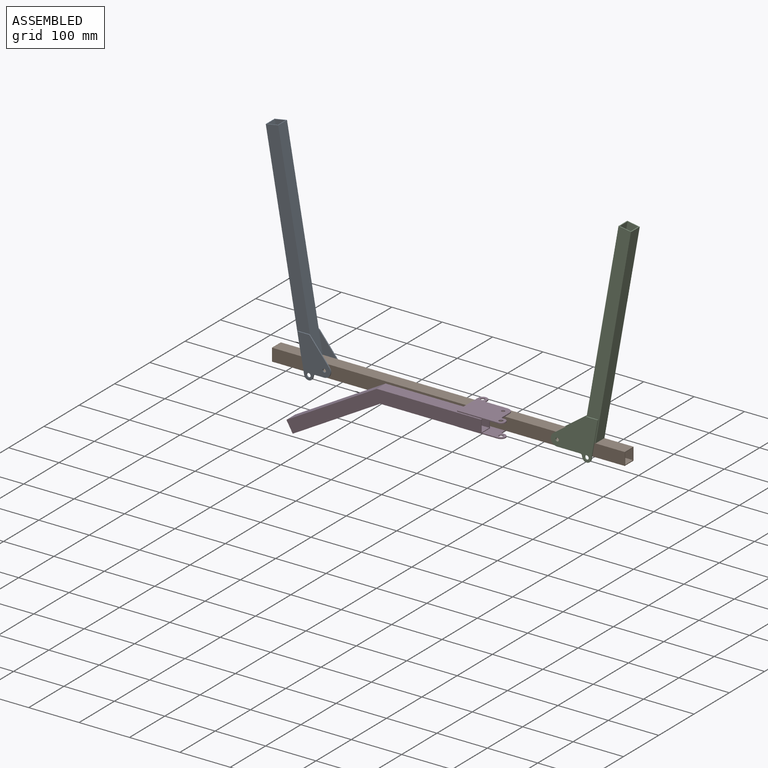
[diagram: assembled view]
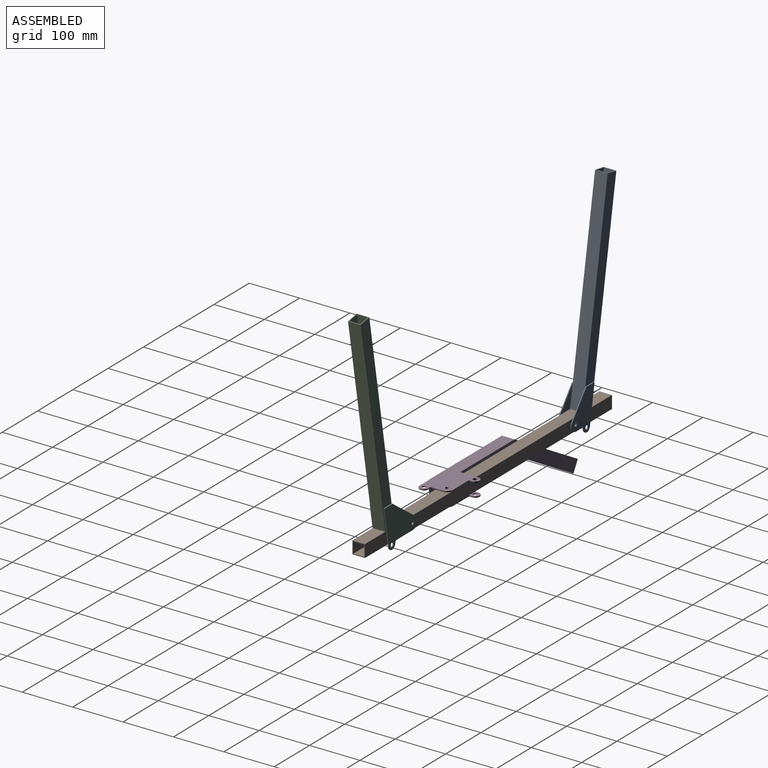
[diagram: assembled view, second angle]
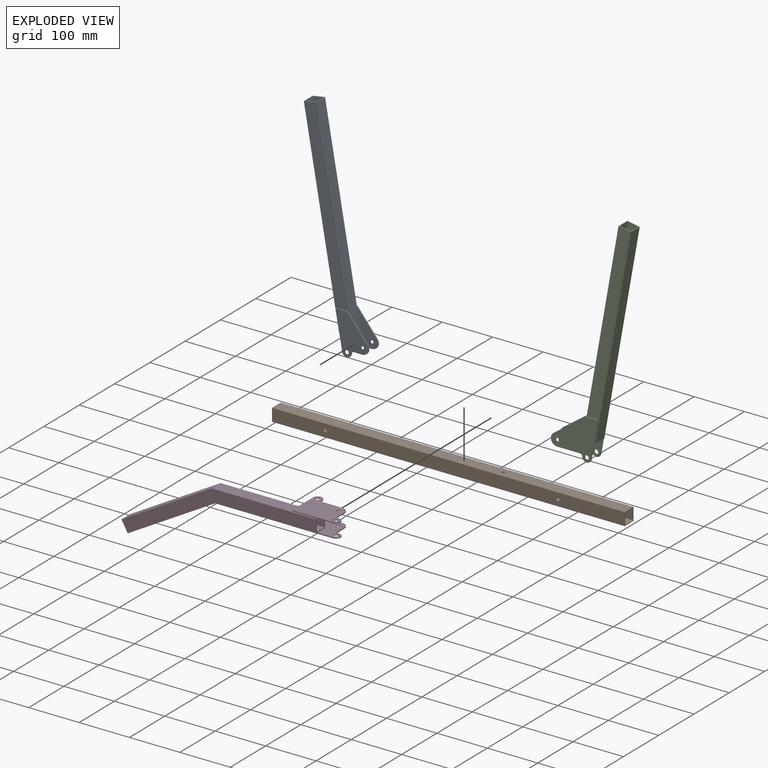
[diagram: exploded view]
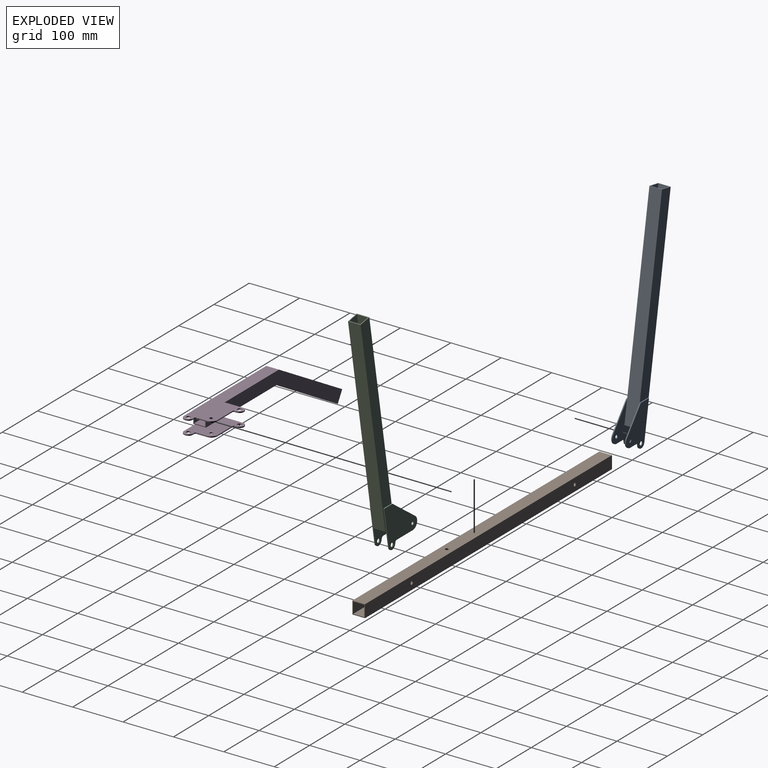
[diagram: exploded view, second angle]
ASSEMBLY  parts=4 mates=3
PART A: 34 faces, bbox 130x29x440.2 mm
  f0: plane 402.17x87.79mm, normal (0,1,0), area 9128.1mm2, adj f2,f4,f5,f9,f22,f23
  f1: plane 402.17x87.79mm, normal (0,-1,0), area 9128.1mm2, adj f2,f4,f5,f9,f10,f18
  f2: plane 25.39x25mm, normal (0,0,-1), area 143.2mm2, adj f0,f1,f3,f4,f6,f7,f8,f9
  f3: plane 401.91x92.53mm, normal (0,-1,0), area 8935.8mm2, adj f2,f5,f6,f7
  f4: plane 397.83x70.15mm, normal (-0.98,0,-0.17), area 10099.2mm2, adj f0,f1,f2,f5
  f5: plane 25x24.62mm, normal (-0.17,0,0.98), area 141mm2, adj f0,f1,f3,f4,f6,f7,f8,f9
  f6: plane 398.09x70.19mm, normal (0.98,0,0.17), area 8893.1mm2, adj f2,f3,f5,f8
  f7: plane 401.91x70.87mm, normal (-0.98,0,-0.17), area 8978.4mm2, adj f2,f3,f5,f8
  f8: plane 401.91x92.53mm, normal (0,1,0), area 8935.8mm2, adj f2,f5,f6,f7
  f9: plane 402.17x70.91mm, normal (0.98,0,0.17), area 10209.4mm2, adj f0,f1,f2,f5,f21,f33
  f10: plane 74.5x13.14mm, normal (-0.98,0,-0.17), area 151.3mm2, adj f1,f11,f18,f20,f21
  f11: cylinder r=9mm len=17.73mm, axis (0,1,0), area 50.3mm2, adj f10,f12,f20,f21
  f12: plane 2.26x2mm, normal (0.98,0,-0.17), area 4.6mm2, adj f11,f13,f20,f21
  f13: cylinder r=4mm len=3.94mm, axis (0,1,0), area 11.2mm2, adj f12,f14,f20,f21
  f14: plane 17.91x2mm, normal (0,0,-1), area 35.8mm2, adj f13,f15,f20,f21
  f15: cylinder r=12.5mm len=20.38mm, axis (0,1,0), area 56.3mm2, adj f14,f16,f20,f21
  f16: plane 48.55x39.45mm, normal (0.78,0,0.63), area 125.1mm2, adj f15,f18,f20,f21
  f17: cylinder r=4mm len=8mm, axis (0,1,0), area 50.3mm2, adj f20,f21
  f18: plane 23.36x2mm, normal (0,0,1), area 46.7mm2, adj f1,f10,f16,f20
  f19: cylinder r=3.25mm len=6.5mm, axis (0,1,0), area 40.8mm2, adj f20,f21
  f20: plane 81.94x65.61mm, normal (0,-1,0), area 3091.6mm2, adj f10,f11,f12,f13,f14,f15,f16,f17
  f21: plane 81.94x57.86mm, normal (0,1,0), area 2065.5mm2, adj f2,f9,f10,f11,f12,f13,f14,f15
  f22: plane 74.5x13.14mm, normal (-0.98,0,-0.17), area 151.3mm2, adj f0,f23,f30,f32,f33
  f23: plane 23.36x2mm, normal (0,0,1), area 46.7mm2, adj f0,f22,f24,f32
  f24: plane 48.55x39.45mm, normal (0.78,0,0.63), area 125.1mm2, adj f23,f25,f32,f33
  f25: cylinder r=12.5mm len=20.38mm, axis (0,-1,0), area 56.3mm2, adj f24,f26,f32,f33
  f26: plane 17.91x2mm, normal (0,0,-1), area 35.8mm2, adj f25,f27,f32,f33
  f27: cylinder r=4mm len=3.94mm, axis (0,-1,0), area 11.2mm2, adj f26,f28,f32,f33
  f28: plane 2.26x2mm, normal (0.98,0,-0.17), area 4.6mm2, adj f27,f30,f32,f33
  f29: cylinder r=4mm len=8mm, axis (0,-1,0), area 50.3mm2, adj f32,f33
  f30: cylinder r=9mm len=17.73mm, axis (0,-1,0), area 50.3mm2, adj f22,f28,f32,f33
  f31: cylinder r=3.25mm len=6.5mm, axis (0,-1,0), area 40.8mm2, adj f32,f33
  f32: plane 81.94x65.61mm, normal (0,1,0), area 3091.6mm2, adj f22,f23,f24,f25,f26,f27,f28,f29
  f33: plane 81.94x57.86mm, normal (0,-1,0), area 2065.5mm2, adj f2,f9,f22,f24,f25,f26,f27,f28
PART B: 16 faces, bbox 700x25x25 mm
  f0: plane 700x25mm, normal (0,0,1), area 17466.8mm2, adj f1,f7,f8,f9,f14
  f1: plane 700x25mm, normal (0,-1,0), area 17433.6mm2, adj f0,f2,f8,f9,f11,f13
  f2: plane 700x25mm, normal (0,0,-1), area 17466.8mm2, adj f1,f7,f8,f9,f15
  f3: plane 700x22mm, normal (0,-1,0), area 15333.6mm2, adj f4,f6,f8,f9,f10,f12
  f4: plane 700x22mm, normal (0,0,1), area 15366.8mm2, adj f3,f5,f8,f9,f15
  f5: plane 700x22mm, normal (0,1,0), area 15333.6mm2, adj f4,f6,f8,f9,f11,f13
  f6: plane 700x22mm, normal (0,0,-1), area 15366.8mm2, adj f3,f5,f8,f9,f14
  f7: plane 700x25mm, normal (0,1,0), area 17433.6mm2, adj f0,f2,f8,f9,f10,f12
  f8: plane 25x25mm, normal (1,0,0), area 141mm2, adj f0,f1,f2,f3,f4,f5,f6,f7
  f9: plane 25x25mm, normal (-1,0,0), area 141mm2, adj f0,f1,f2,f3,f4,f5,f6,f7
  f10: cylinder r=3.25mm len=6.5mm, axis (0,-1,0), area 30.6mm2, adj f3,f7
  f11: cylinder r=3.25mm len=6.5mm, axis (0,-1,0), area 30.6mm2, adj f1,f5
  f12: cylinder r=3.25mm len=6.5mm, axis (0,-1,0), area 30.6mm2, adj f3,f7
  f13: cylinder r=3.25mm len=6.5mm, axis (0,-1,0), area 30.6mm2, adj f1,f5
  f14: cylinder r=3.25mm len=6.5mm, axis (0,0,1), area 30.6mm2, adj f0,f6
  f15: cylinder r=3.25mm len=6.5mm, axis (0,0,1), area 30.6mm2, adj f2,f4
PART C: 34 faces, bbox 157.5x29x440.2 mm
  f0: plane 402.17x87.79mm, normal (0,1,0), area 9128.1mm2, adj f2,f3,f8,f9,f23,f31
  f1: plane 402.17x87.79mm, normal (0,-1,0), area 9128.1mm2, adj f2,f3,f8,f9,f10,f11
  f2: plane 25.39x25mm, normal (0,0,-1), area 143.2mm2, adj f0,f1,f3,f4,f5,f6,f7,f8
  f3: plane 402.17x70.91mm, normal (-0.98,0,0.17), area 10209.4mm2, adj f0,f1,f2,f9,f21,f22
  f4: plane 401.91x92.53mm, normal (0,-1,0), area 8935.8mm2, adj f2,f5,f7,f9
  f5: plane 401.91x70.87mm, normal (0.98,0,-0.17), area 8978.4mm2, adj f2,f4,f6,f9
  f6: plane 401.91x92.53mm, normal (0,1,0), area 8935.8mm2, adj f2,f5,f7,f9
  f7: plane 398.09x70.19mm, normal (-0.98,0,0.17), area 8893.1mm2, adj f2,f4,f6,f9
  f8: plane 397.83x70.15mm, normal (0.98,0,-0.17), area 10099.2mm2, adj f0,f1,f2,f9
  f9: plane 25x24.62mm, normal (0.17,0,0.98), area 141mm2, adj f0,f1,f3,f4,f5,f6,f7,f8
  f10: plane 74.5x13.14mm, normal (0.98,0,-0.17), area 151.3mm2, adj f1,f11,f18,f20,f21
  f11: plane 23.36x2mm, normal (0,0,1), area 46.7mm2, adj f1,f10,f12,f20
  f12: plane 64.46x46.28mm, normal (-0.58,0,0.81), area 158.7mm2, adj f11,f13,f20,f21
  f13: cylinder r=12.5mm len=22.65mm, axis (0,1,0), area 63mm2, adj f12,f14,f20,f21
  f14: plane 45.32x2mm, normal (0,0,-1), area 90.6mm2, adj f13,f15,f20,f21
  f15: cylinder r=4mm len=3.94mm, axis (0,1,0), area 11.2mm2, adj f14,f16,f20,f21
  f16: plane 2.26x2mm, normal (-0.98,0,-0.17), area 4.6mm2, adj f15,f18,f20,f21
  f17: cylinder r=4mm len=8mm, axis (0,1,0), area 50.3mm2, adj f20,f21
  f18: cylinder r=9mm len=17.73mm, axis (0,1,0), area 50.3mm2, adj f10,f16,f20,f21
  f19: cylinder r=3.25mm len=6.5mm, axis (0,1,0), area 40.8mm2, adj f20,f21
  f20: plane 93.02x81.94mm, normal (0,-1,0), area 4333.7mm2, adj f10,f11,f12,f13,f14,f15,f16,f17
  f21: plane 85.28x81.94mm, normal (0,1,0), area 3307.6mm2, adj f2,f3,f10,f12,f13,f14,f15,f16
  f22: plane 85.28x81.94mm, normal (0,-1,0), area 3307.6mm2, adj f2,f3,f23,f24,f25,f26,f27,f28
  f23: plane 74.5x13.14mm, normal (0.98,0,-0.17), area 151.3mm2, adj f0,f22,f24,f31,f33
  f24: cylinder r=9mm len=17.73mm, axis (0,-1,0), area 50.3mm2, adj f22,f23,f25,f33
  f25: plane 2.26x2mm, normal (-0.98,0,-0.17), area 4.6mm2, adj f22,f24,f26,f33
  f26: cylinder r=4mm len=3.94mm, axis (0,-1,0), area 11.2mm2, adj f22,f25,f27,f33
  f27: plane 45.32x2mm, normal (0,0,-1), area 90.6mm2, adj f22,f26,f28,f33
  f28: cylinder r=12.5mm len=22.65mm, axis (0,-1,0), area 63mm2, adj f22,f27,f29,f33
  f29: plane 64.46x46.28mm, normal (-0.58,0,0.81), area 158.7mm2, adj f22,f28,f31,f33
  f30: cylinder r=4mm len=8mm, axis (0,-1,0), area 50.3mm2, adj f22,f33
  f31: plane 23.36x2mm, normal (0,0,1), area 46.7mm2, adj f0,f23,f29,f33
  f32: cylinder r=3.25mm len=6.5mm, axis (0,-1,0), area 40.8mm2, adj f22,f33
  f33: plane 93.02x81.94mm, normal (0,1,0), area 4333.7mm2, adj f23,f24,f25,f26,f27,f28,f29,f30
PART D: 46 faces, bbox 72x426.4x127.2 mm
  f0: plane 386.37x125.18mm, normal (-1,0,0), area 10185.3mm2, adj f3,f4,f5,f10,f11,f12,f14,f45
  f1: plane 385.62x122.38mm, normal (1,0,0), area 8963.1mm2, adj f2,f3,f7,f9,f10,f13
  f2: plane 200.76x22mm, normal (0,0,1), area 4416.7mm2, adj f1,f3,f8,f9
  f3: plane 25x25mm, normal (0,1,0), area 141mm2, adj f0,f1,f2,f4,f5,f6,f7,f8
  f4: plane 200.36x25mm, normal (0,0,-1), area 3908.9mm2, adj f0,f3,f6,f11,f30,f43
  f5: plane 207.06x25mm, normal (0,0,1), area 4076.4mm2, adj f0,f3,f6,f12,f15,f16
  f6: plane 386.37x125.18mm, normal (1,0,0), area 10185.3mm2, adj f3,f4,f5,f10,f11,f12
  f7: plane 206.65x22mm, normal (0,0,-1), area 4546.4mm2, adj f1,f3,f8,f13
  f8: plane 385.62x122.38mm, normal (-1,0,0), area 8963.1mm2, adj f2,f3,f7,f9,f10,f13
  f9: plane 173.86x100.38mm, normal (0,-0.5,0.87), area 4416.7mm2, adj f1,f2,f8,f10
  f10: plane 25x21.65mm, normal (0,-0.87,-0.5), area 141mm2, adj f0,f1,f6,f8,f9,f11,f12,f13
  f11: plane 173.51x100.18mm, normal (0,0.5,-0.87), area 5008.9mm2, adj f0,f4,f6,f10
  f12: plane 179.32x103.53mm, normal (0,-0.5,0.87), area 5176.4mm2, adj f0,f5,f6,f10
  f13: plane 178.97x103.33mm, normal (0,0.5,-0.87), area 4546.4mm2, adj f1,f7,f8,f10
  f14: plane 90x69mm, normal (0,0,-1), area 3254.9mm2, adj f0,f3,f15,f16,f17,f18,f19,f20
  f15: plane 60x2mm, normal (0,-1,0), area 120mm2, adj f5,f14,f16,f28,f29
  f16: plane 81x2mm, normal (1,0,0), area 162mm2, adj f5,f14,f15,f17,f29
  f17: cylinder r=9mm len=18mm, axis (0,0,-1), area 56.5mm2, adj f14,f16,f18,f29
  f18: plane 4x2mm, normal (-1,0,0), area 8mm2, adj f14,f17,f19,f29
  f19: cylinder r=2mm len=2mm, axis (0,0,-1), area 6.3mm2, adj f14,f18,f20,f29
  f20: plane 21.5x2mm, normal (0,1,0), area 43mm2, adj f14,f19,f21,f29
  f21: cylinder r=12.5mm len=12.5mm, axis (0,0,-1), area 39.3mm2, adj f14,f20,f22,f29
  f22: plane 42.5x2mm, normal (-1,0,0), area 85mm2, adj f14,f21,f23,f29
  f23: cylinder r=2mm len=2mm, axis (0,0,-1), area 6.3mm2, adj f14,f22,f24,f29
  f24: plane 4x2mm, normal (0,1,0), area 8mm2, adj f14,f23,f28,f29
  f25: cylinder r=3.25mm len=6.5mm, axis (0,0,-1), area 40.8mm2, adj f14,f29
  f26: cylinder r=4mm len=8mm, axis (0,0,-1), area 50.3mm2, adj f14,f29
  f27: cylinder r=4mm len=8mm, axis (0,0,-1), area 50.3mm2, adj f14,f29
  f28: cylinder r=9mm len=18mm, axis (0,0,-1), area 56.5mm2, adj f14,f15,f24,f29
  f29: plane 90x69mm, normal (0,0,1), area 4354.9mm2, adj f15,f16,f17,f18,f19,f20,f21,f22
  f30: plane 60x2mm, normal (0,-1,0), area 120mm2, adj f4,f31,f43,f44,f45
  f31: cylinder r=9mm len=18mm, axis (0,0,1), area 56.5mm2, adj f30,f32,f44,f45
  f32: plane 4x2mm, normal (0,1,0), area 8mm2, adj f31,f33,f44,f45
  f33: cylinder r=2mm len=2mm, axis (0,0,1), area 6.3mm2, adj f32,f34,f44,f45
  f34: plane 42.5x2mm, normal (-1,0,0), area 85mm2, adj f33,f35,f44,f45
  f35: cylinder r=12.5mm len=12.5mm, axis (0,0,1), area 39.3mm2, adj f34,f36,f44,f45
  f36: plane 21.5x2mm, normal (0,1,0), area 43mm2, adj f35,f37,f44,f45
  f37: cylinder r=2mm len=2mm, axis (0,0,1), area 6.3mm2, adj f36,f38,f44,f45
  f38: plane 4x2mm, normal (-1,0,0), area 8mm2, adj f37,f39,f44,f45
  f39: cylinder r=9mm len=18mm, axis (0,0,1), area 56.5mm2, adj f38,f43,f44,f45
  f40: cylinder r=3.25mm len=6.5mm, axis (0,0,1), area 40.8mm2, adj f44,f45
  f41: cylinder r=4mm len=8mm, axis (0,0,1), area 50.3mm2, adj f44,f45
  f42: cylinder r=4mm len=8mm, axis (0,0,1), area 50.3mm2, adj f44,f45
  f43: plane 81x2mm, normal (1,0,0), area 162mm2, adj f4,f30,f39,f44,f45
  f44: plane 90x69mm, normal (0,0,-1), area 4354.9mm2, adj f30,f31,f32,f33,f34,f35,f36,f37
  f45: plane 90x69mm, normal (0,0,1), area 3254.9mm2, adj f0,f3,f30,f31,f32,f33,f34,f35
PLACE A t=(350,-12.5,12.5)mm
PLACE B t=(350,-12.5,12.5)mm
PLACE C rot(axis=(0.01,-1,-0.01),0deg) t=(350,-12.5,12.5)mm
PLACE D rot(axis=(0,0,-1),90deg) t=(450,-44.5,12.5)mm
MATE revolute B.f12 <-> C.f19  axis (0,-1,0) through (567.35,-25,12.5)mm
MATE revolute B.f14 <-> D.f25  axis (0,0,1) through (450,-12.5,25)mm
MATE revolute B.f10 <-> A.f19  axis (0,-1,0) through (105.23,-25,12.5)mm
